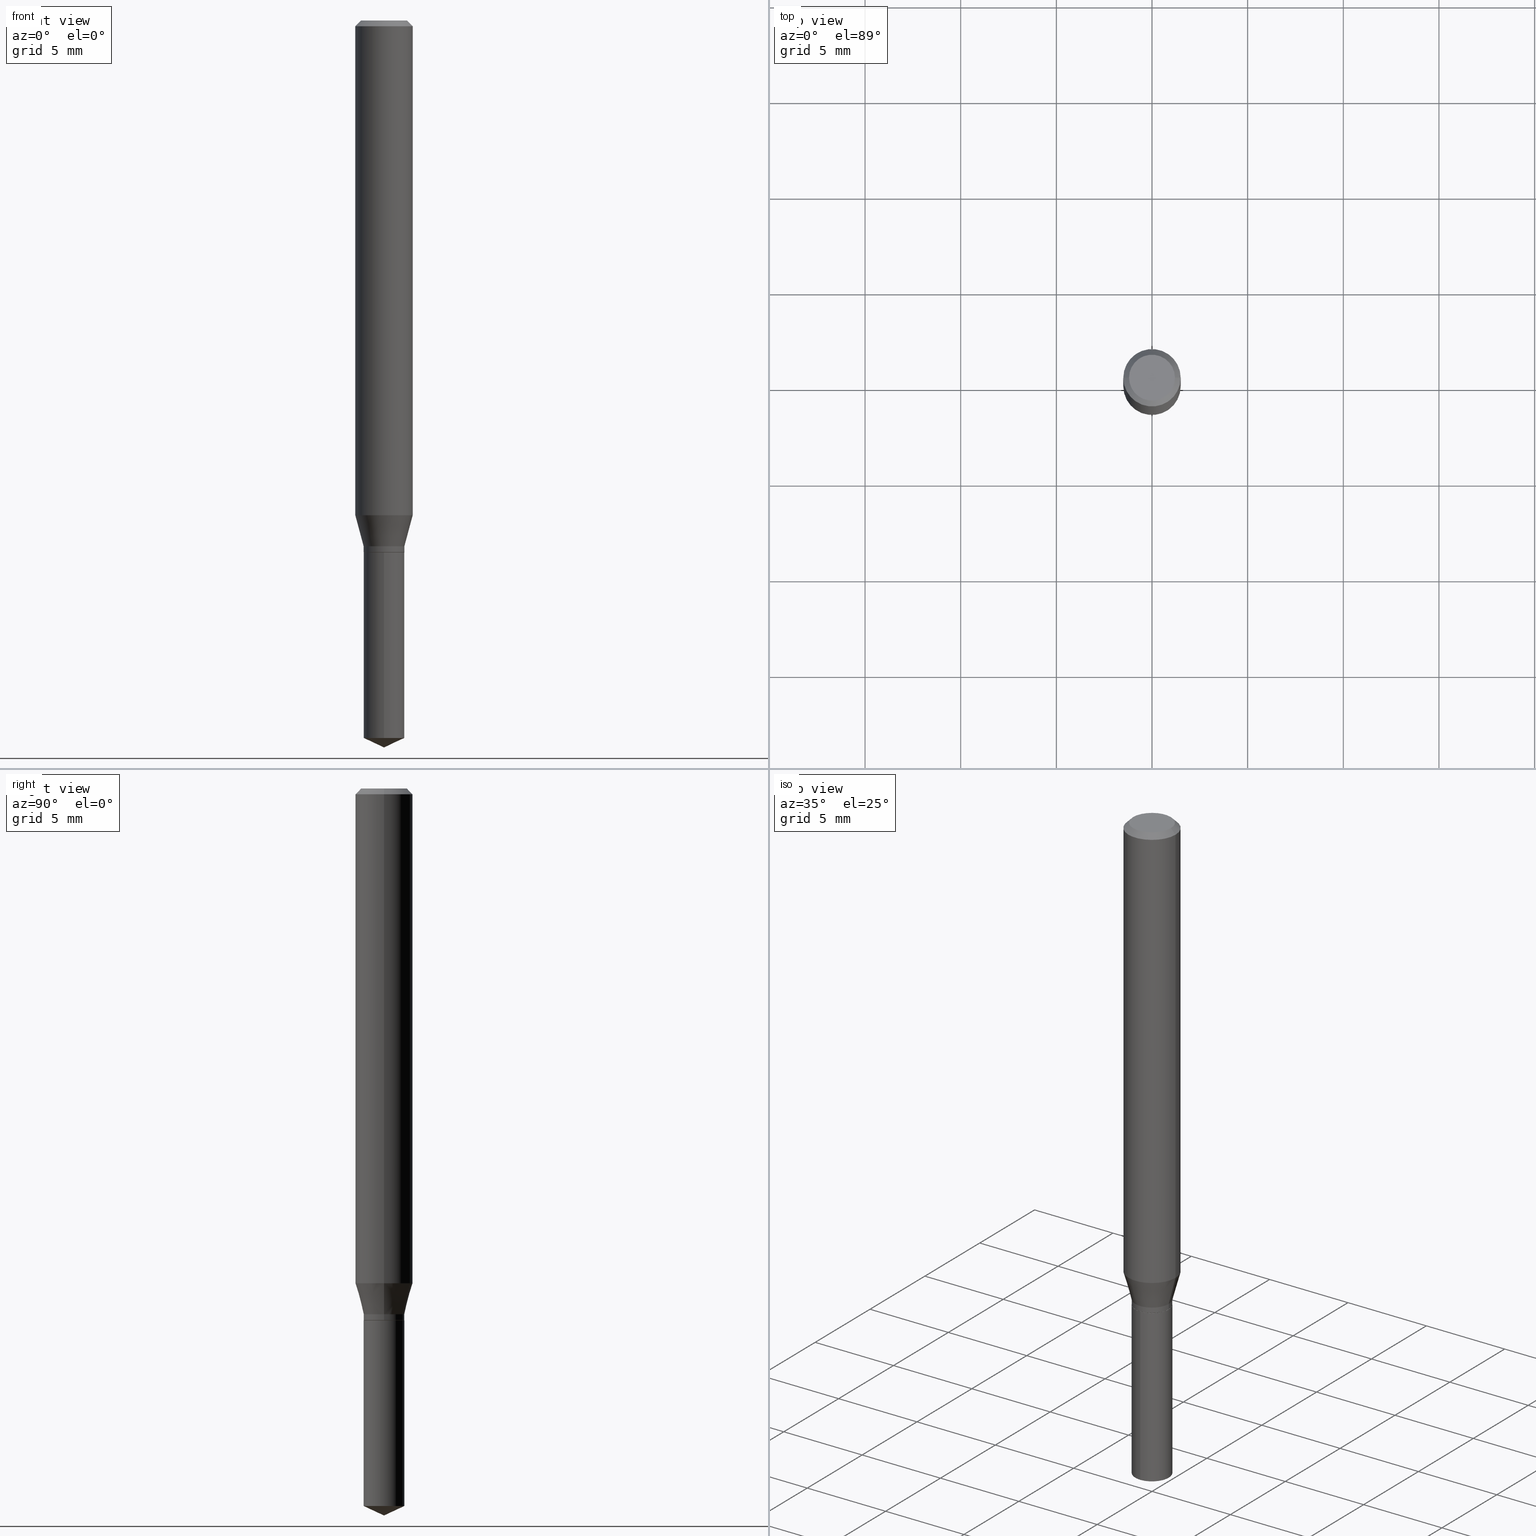
[diagram: canonical four-view strip — front | top / right | iso, engineering-drawing reading convention]
A machine part, canonical four-view strip (front | top / right | iso — engineering-drawing reading convention). The complete STEP part file that produces these views, byte-faithful:
ISO-10303-21;
HEADER;
FILE_DESCRIPTION (( 'STEP AP203' ),
    '1' );
FILE_NAME ('07616.STEP',
    '2024-04-23T23:49:26',
    ( '' ),
    ( '' ),
    'SwSTEP 2.0',
    'SolidWorks 2023',
    '' );
FILE_SCHEMA (( 'CONFIG_CONTROL_DESIGN' ));
ENDSEC;

DATA;
#1 = VERTEX_POINT ( 'NONE', #172 ) ;
#2 = DIRECTION ( 'NONE',  ( 0.000000000000000000, 0.000000000000000000, 1.000000000000000000 ) ) ;
#3 = EDGE_CURVE ( 'NONE', #328, #283, #195, .T. ) ;
#4 = ORIENTED_EDGE ( 'NONE', *, *, #82, .F. ) ;
#5 = AXIS2_PLACEMENT_3D ( 'NONE', #260, #487, #415 ) ;
#6 = EDGE_LOOP ( 'NONE', ( #462, #480, #401, #100 ) ) ;
#7 = DIRECTION ( 'NONE',  ( -2.445468806185136597E-29, 3.491481338843145583E-15, 1.000000000000000000 ) ) ;
#8 = CC_DESIGN_PERSON_AND_ORGANIZATION_ASSIGNMENT ( #355, #439, ( #84 ) ) ;
#9 = CALENDAR_DATE ( 2024, 23, 4 ) ;
#10 = CARTESIAN_POINT ( 'NONE',  ( -2.929352843289121272E-16, -0.04195000000000383145, -1.094499999999999806 ) ) ;
#11 = CARTESIAN_POINT ( 'NONE',  ( -2.929352843289027595E-16, -0.04195000000000514984, -1.476538393740397526 ) ) ;
#12 = FACE_OUTER_BOUND ( 'NONE', #148, .T. ) ;
#13 = AXIS2_PLACEMENT_3D ( 'NONE', #371, #144, #224 ) ;
#14 = EDGE_CURVE ( 'NONE', #305, #169, #474, .T. ) ;
#15 = CONICAL_SURFACE ( 'NONE', #164, 0.04145000000000000073, 0.7853981633972775267 ) ;
#16 = ORIENTED_EDGE ( 'NONE', *, *, #276, .T. ) ;
#17 = LINE ( 'NONE', #360, #476 ) ;
#18 = ADVANCED_FACE ( 'NONE', ( #182 ), #231, .F. ) ;
#19 = ORIENTED_EDGE ( 'NONE', *, *, #301, .T. ) ;
#20 = FACE_OUTER_BOUND ( 'NONE', #310, .T. ) ;
#21 = VERTEX_POINT ( 'NONE', #52 ) ;
#22 = FACE_OUTER_BOUND ( 'NONE', #121, .T. ) ;
#23 = DATE_AND_TIME ( #252, #124 ) ;
#24 = CIRCLE ( 'NONE', #226, 0.04195000000000000118 ) ;
#25 = ORIENTED_EDGE ( 'NONE', *, *, #42, .F. ) ;
#26 = DIRECTION ( 'NONE',  ( 1.000000000000000000, -6.982962677686266711E-15, 0.000000000000000000 ) ) ;
#27 = CC_DESIGN_PERSON_AND_ORGANIZATION_ASSIGNMENT ( #307, #159, ( #451 ) ) ;
#28 = CARTESIAN_POINT ( 'NONE',  ( 8.265746106709734507E-48, -1.180129479067563789E-33, -3.380025165646692144E-19 ) ) ;
#29 = CARTESIAN_POINT ( 'NONE',  ( 0.05905000000000013016, -3.966958010282648505E-15, -1.018081931190571998 ) ) ;
#30 = ADVANCED_FACE ( 'NONE', ( #197 ), #56, .T. ) ;
#31 = CARTESIAN_POINT ( 'NONE',  ( -9.261924752013118283E-28, 1.322368428517963298E-13, 37.87397874015748300 ) ) ;
#32 = AXIS2_PLACEMENT_3D ( 'NONE', #297, #221, #146 ) ;
#33 = DIRECTION ( 'NONE',  ( -2.445468806185136597E-29, 3.491481338843145583E-15, 1.000000000000000000 ) ) ;
#34 = DIRECTION ( 'NONE',  ( -6.982962677686266711E-15, -1.000000000000000000, 3.256076273735712870E-15 ) ) ;
#35 = ADVANCED_FACE ( 'NONE', ( #12 ), #186, .T. ) ;
#36 = CARTESIAN_POINT ( 'NONE',  ( 2.489687604867266189E-29, -3.554614064165273585E-15, -1.018081931190571998 ) ) ;
#37 = DIRECTION ( 'NONE',  ( -0.7071067811865454633, 2.468850131082235367E-15, -0.7071067811865495711 ) ) ;
#38 = VECTOR ( 'NONE', #242, 39.37007874015748143 ) ;
#39 = VECTOR ( 'NONE', #484, 39.37007874015748143 ) ;
#40 = CC_DESIGN_APPROVAL ( #340, ( #314 ) ) ;
#41 = ORIENTED_EDGE ( 'NONE', *, *, #393, .T. ) ;
#42 = EDGE_CURVE ( 'NONE', #199, #468, #354, .T. ) ;
#43 = DIRECTION ( 'NONE',  ( 0.7071067811865454633, -7.319954787623248157E-15, -0.7071067811865495711 ) ) ;
#44 = DIRECTION ( 'NONE',  ( 1.000000000000000000, -6.982962677686266711E-15, 0.000000000000000000 ) ) ;
#45 = AXIS2_PLACEMENT_3D ( 'NONE', #28, #320, #97 ) ;
#46 = AXIS2_PLACEMENT_3D ( 'NONE', #318, #469, #471 ) ;
#47 = ORGANIZATION ( 'UNSPECIFIED', 'UNSPECIFIED', '' ) ;
#48 = CIRCLE ( 'NONE', #175, 0.04195000000000000118 ) ;
#49 = CARTESIAN_POINT ( 'NONE',  ( 0.000000000000000000, 0.000000000000000000, 0.000000000000000000 ) ) ;
#50 = PERSON_AND_ORGANIZATION ( #223, #47 ) ;
#51 = ORIENTED_EDGE ( 'NONE', *, *, #455, .T. ) ;
#52 = CARTESIAN_POINT ( 'NONE',  ( -2.929352843289121272E-16, -0.04195000000000383145, -1.094499999999999806 ) ) ;
#53 = CC_DESIGN_PERSON_AND_ORGANIZATION_ASSIGNMENT ( #113, #419, ( #120 ) ) ;
#54 = SHAPE_DEFINITION_REPRESENTATION ( #369, #105 ) ;
#55 = ORIENTED_EDGE ( 'NONE', *, *, #57, .F. ) ;
#56 = CYLINDRICAL_SURFACE ( 'NONE', #237, 0.04195000000000000118 ) ;
#57 = EDGE_CURVE ( 'NONE', #436, #468, #48, .T. ) ;
#58 = VERTEX_POINT ( 'NONE', #163 ) ;
#59 = LINE ( 'NONE', #216, #442 ) ;
#60 = ORIENTED_EDGE ( 'NONE', *, *, #446, .T. ) ;
#61 = DIRECTION ( 'NONE',  ( -6.982962677686266711E-15, -1.000000000000000000, 3.256076273735712870E-15 ) ) ;
#62 = PERSON_AND_ORGANIZATION ( #223, #47 ) ;
#63 = CC_DESIGN_DATE_AND_TIME_ASSIGNMENT ( #243, #391, ( #314 ) ) ;
#64 = ORIENTED_EDGE ( 'NONE', *, *, #327, .F. ) ;
#65 = CARTESIAN_POINT ( 'NONE',  ( 4.132873053354867254E-48, -5.900647395337818946E-34, -1.690012582823346072E-19 ) ) ;
#66 = AXIS2_PLACEMENT_3D ( 'NONE', #106, #335, #72 ) ;
#67 = EDGE_LOOP ( 'NONE', ( #403, #349, #253, #88 ) ) ;
#68 = LINE ( 'NONE', #179, #425 ) ;
#69 = DIRECTION ( 'NONE',  ( -2.445468806185136597E-29, 3.491481338843145583E-15, 1.000000000000000000 ) ) ;
#70 = CARTESIAN_POINT ( 'NONE',  ( 0.04195000000000000118, -4.070368944823337860E-15, -1.081900000000000084 ) ) ;
#71 = CIRCLE ( 'NONE', #32, 0.04195000000000000118 ) ;
#72 = DIRECTION ( 'NONE',  ( -6.982962677686267499E-15, -1.000000000000000000, 3.520397390770440854E-15 ) ) ;
#73 = CARTESIAN_POINT ( 'NONE',  ( -0.05905000000000006771, 4.195754854663396409E-16, -2.904631170795525045E-30 ) ) ;
#74 = FACE_OUTER_BOUND ( 'NONE', #125, .T. ) ;
#75 = CARTESIAN_POINT ( 'NONE',  ( 0.04724000000000000421, -3.852183633974369838E-16, -3.380025165621689721E-19 ) ) ;
#76 = AXIS2_PLACEMENT_3D ( 'NONE', #450, #111, #187 ) ;
#77 = ORIENTED_EDGE ( 'NONE', *, *, #276, .F. ) ;
#78 = LINE ( 'NONE', #86, #384 ) ;
#79 = DIRECTION ( 'NONE',  ( 2.445468806185136597E-29, -3.491481338843145583E-15, -1.000000000000000000 ) ) ;
#80 = COORDINATED_UNIVERSAL_TIME_OFFSET ( 5, 0, .BEHIND. ) ;
#81 = CARTESIAN_POINT ( 'NONE',  ( 0.04195000000000000118, -2.929352843289388992E-16, 2.045556157446395029E-30 ) ) ;
#82 = EDGE_CURVE ( 'NONE', #468, #21, #245, .T. ) ;
#83 = VECTOR ( 'NONE', #215, 39.37007874015748143 ) ;
#84 = PRODUCT_DEFINITION_FORMATION_WITH_SPECIFIED_SOURCE ( 'ANY', '', #120, .NOT_KNOWN. ) ;
#85 = CLOSED_SHELL ( 'NONE', ( #30, #312, #336, #241, #153 ) ) ;
#86 = CARTESIAN_POINT ( 'NONE',  ( 0.04145000000000000073, -4.110870128353919109E-15, -1.094500000000000028 ) ) ;
#87 = EDGE_CURVE ( 'NONE', #285, #305, #234, .T. ) ;
#88 = ORIENTED_EDGE ( 'NONE', *, *, #174, .F. ) ;
#89 = ORIENTED_EDGE ( 'NONE', *, *, #82, .T. ) ;
#90 = CARTESIAN_POINT ( 'NONE',  ( 2.675342873966538993E-29, -3.819680584694400481E-15, -1.093999999999999861 ) ) ;
#91 = ORIENTED_EDGE ( 'NONE', *, *, #161, .T. ) ;
#92 = DIRECTION ( 'NONE',  ( -2.445458899330790108E-29, 3.491495526022433205E-15, 1.000000000000000000 ) ) ;
#93 = EDGE_CURVE ( 'NONE', #367, #244, #321, .T. ) ;
#94 = CIRCLE ( 'NONE', #432, 0.04195000000000000118 ) ;
#95 = EDGE_LOOP ( 'NONE', ( #357, #64 ) ) ;
#96 = FACE_OUTER_BOUND ( 'NONE', #279, .T. ) ;
#97 = DIRECTION ( 'NONE',  ( 1.000000000000000000, -6.982962677686266711E-15, 4.876185090822587894E-29 ) ) ;
#98 = DIRECTION ( 'NONE',  ( 1.000000000000000000, -6.982962677686265133E-15, 0.000000000000000000 ) ) ;
#99 = APPROVAL_STATUS ( 'not_yet_approved' ) ;
#100 = ORIENTED_EDGE ( 'NONE', *, *, #14, .F. ) ;
#101 = DIRECTION ( 'NONE',  ( 2.445458899330789267E-29, -3.491495526022433599E-15, -1.000000000000000000 ) ) ;
#102 = AXIS2_PLACEMENT_3D ( 'NONE', #303, #149, #44 ) ;
#103 = DIRECTION ( 'NONE',  ( -2.445468806185136877E-29, 3.491481338843145188E-15, 1.000000000000000000 ) ) ;
#104 = DIRECTION ( 'NONE',  ( -2.445458899330790108E-29, 3.491495526022433205E-15, 1.000000000000000000 ) ) ;
#105 = ADVANCED_BREP_SHAPE_REPRESENTATION ( '07616', ( #171, #334, #280 ), #488 ) ;
#106 = CARTESIAN_POINT ( 'NONE',  ( -9.261924752013118283E-28, 1.322368428517963298E-13, 37.87397874015748300 ) ) ;
#107 = CIRCLE ( 'NONE', #46, 0.04195000000000000118 ) ;
#108 = AXIS2_PLACEMENT_3D ( 'NONE', #294, #104, #112 ) ;
#109 = DIRECTION ( 'NONE',  ( 2.445468806185136597E-29, -3.491481338843145583E-15, -1.000000000000000000 ) ) ;
#110 = AXIS2_PLACEMENT_3D ( 'NONE', #410, #453, #311 ) ;
#111 = DIRECTION ( 'NONE',  ( -2.445468806185136597E-29, 3.491481338843145583E-15, 1.000000000000000000 ) ) ;
#112 = DIRECTION ( 'NONE',  ( -6.982962677686266711E-15, -1.000000000000000000, 6.512152547471425740E-15 ) ) ;
#113 = PERSON_AND_ORGANIZATION ( #223, #47 ) ;
#114 = CIRCLE ( 'NONE', #108, 0.04195000000000000118 ) ;
#115 = APPLICATION_PROTOCOL_DEFINITION ( 'international standard', 'config_control_design', 1994, #140 ) ;
#116 = EDGE_CURVE ( 'NONE', #285, #346, #378, .T. ) ;
#117 = CALENDAR_DATE ( 2024, 23, 4 ) ;
#118 = ORIENTED_EDGE ( 'NONE', *, *, #126, .F. ) ;
#119 = ADVANCED_FACE ( 'NONE', ( #270 ), #281, .T. ) ;
#120 = PRODUCT ( '07616', '07616', '', ( #268 ) ) ;
#121 = EDGE_LOOP ( 'NONE', ( #118, #19, #282, #392 ) ) ;
#122 = VECTOR ( 'NONE', #363, 39.37007874015747433 ) ;
#123 = CONICAL_SURFACE ( 'NONE', #66, 84.42940631927464779, 1.134464013796317339 ) ;
#124 = LOCAL_TIME ( 19, 49, 26.00000000000000000, #319 ) ;
#125 = EDGE_LOOP ( 'NONE', ( #132, #250, #470, #433 ) ) ;
#126 = EDGE_CURVE ( 'NONE', #1, #206, #59, .T. ) ;
#127 = CARTESIAN_POINT ( 'NONE',  ( 3.658651059288794515E-29, -5.223626456482161457E-15, -1.496099999999999985 ) ) ;
#128 = ORIENTED_EDGE ( 'NONE', *, *, #467, .F. ) ;
#129 = LINE ( 'NONE', #286, #83 ) ;
#130 = CONICAL_SURFACE ( 'NONE', #412, 0.05905000000000000526, 0.7853981633974453924 ) ;
#131 = APPROVAL_ROLE ( '' ) ;
#132 = ORIENTED_EDGE ( 'NONE', *, *, #380, .F. ) ;
#133 = DIRECTION ( 'NONE',  ( 1.000000000000000000, -6.982962677686266711E-15, 4.876176775795935793E-29 ) ) ;
#134 = ORIENTED_EDGE ( 'NONE', *, *, #482, .F. ) ;
#135 = DIRECTION ( 'NONE',  ( -2.445468806185136597E-29, 3.491481338843145583E-15, 1.000000000000000000 ) ) ;
#136 = CYLINDRICAL_SURFACE ( 'NONE', #356, 0.04195000000000000118 ) ;
#137 = VECTOR ( 'NONE', #263, 39.37007874015748143 ) ;
#138 = LINE ( 'NONE', #73, #39 ) ;
#139 = EDGE_CURVE ( 'NONE', #199, #436, #17, .T. ) ;
#140 = APPLICATION_CONTEXT ( 'configuration controlled 3d designs of mechanical parts and assemblies' ) ;
#141 = LINE ( 'NONE', #265, #137 ) ;
#142 = CYLINDRICAL_SURFACE ( 'NONE', #13, 0.04195000000000000118 ) ;
#143 = AXIS2_PLACEMENT_3D ( 'NONE', #430, #92, #61 ) ;
#144 = DIRECTION ( 'NONE',  ( -2.445468806185136597E-29, 3.491481338843145583E-15, 1.000000000000000000 ) ) ;
#145 = AXIS2_PLACEMENT_3D ( 'NONE', #292, #101, #170 ) ;
#146 = DIRECTION ( 'NONE',  ( 1.000000000000000000, -6.982962677686266711E-15, 0.000000000000000000 ) ) ;
#147 = LINE ( 'NONE', #233, #323 ) ;
#148 = EDGE_LOOP ( 'NONE', ( #128, #229, #60, #51 ) ) ;
#149 = DIRECTION ( 'NONE',  ( -2.445468806185136597E-29, 3.491481338843145583E-15, 1.000000000000000000 ) ) ;
#150 = DIRECTION ( 'NONE',  ( 1.000000000000000000, 0.000000000000000000, 0.000000000000000000 ) ) ;
#151 = AXIS2_PLACEMENT_3D ( 'NONE', #65, #211, #177 ) ;
#152 = VERTEX_POINT ( 'NONE', #247 ) ;
#153 = ADVANCED_FACE ( 'NONE', ( #20 ), #405, .F. ) ;
#154 = CARTESIAN_POINT ( 'NONE',  ( 2.676565608369632355E-29, -3.821426325363822773E-15, -1.094500000000000028 ) ) ;
#155 = LOCAL_TIME ( 19, 49, 26.00000000000000000, #202 ) ;
#156 = AXIS2_PLACEMENT_3D ( 'NONE', #154, #7, #441 ) ;
#157 = ORIENTED_EDGE ( 'NONE', *, *, #408, .F. ) ;
#158 = DIRECTION ( 'NONE',  ( -1.000000000000000000, 6.982962677686265922E-15, 0.000000000000000000 ) ) ;
#159 = PERSON_AND_ORGANIZATION_ROLE ( 'creator' ) ;
#160 = ORIENTED_EDGE ( 'NONE', *, *, #404, .F. ) ;
#161 = EDGE_CURVE ( 'NONE', #346, #1, #68, .T. ) ;
#162 = DIRECTION ( 'NONE',  ( 0.7071067811864267805, -2.468850131080992517E-15, 0.7071067811866682540 ) ) ;
#163 = CARTESIAN_POINT ( 'NONE',  ( 2.980726776513980774E-16, 0.04194999999999617091, -1.094500000000000028 ) ) ;
#164 = AXIS2_PLACEMENT_3D ( 'NONE', #329, #289, #26 ) ;
#165 = ADVANCED_FACE ( 'NONE', ( #22 ), #383, .T. ) ;
#166 = EDGE_LOOP ( 'NONE', ( #389, #189, #315, #4 ) ) ;
#167 = FACE_OUTER_BOUND ( 'NONE', #428, .T. ) ;
#168 = CC_DESIGN_PERSON_AND_ORGANIZATION_ASSIGNMENT ( #198, #352, ( #84 ) ) ;
#169 = VERTEX_POINT ( 'NONE', #29 ) ;
#170 = DIRECTION ( 'NONE',  ( 6.982962677686265922E-15, 1.000000000000000000, -3.491495526022433599E-15 ) ) ;
#171 = MANIFOLD_SOLID_BREP ( 'Body-Move/Copy2[1]', #85 ) ;
#172 = CARTESIAN_POINT ( 'NONE',  ( -0.04195000000000000118, -3.500484444943037956E-15, -1.081900000000000084 ) ) ;
#173 = DIRECTION ( 'NONE',  ( -2.445458899330790108E-29, 3.491495526022433205E-15, 1.000000000000000000 ) ) ;
#174 = EDGE_CURVE ( 'NONE', #346, #285, #107, .T. ) ;
#175 = AXIS2_PLACEMENT_3D ( 'NONE', #390, #343, #463 ) ;
#176 = ORIENTED_EDGE ( 'NONE', *, *, #421, .F. ) ;
#177 = DIRECTION ( 'NONE',  ( -1.000000000000000000, 6.982962677686265922E-15, -4.876176775795935793E-29 ) ) ;
#178 = EDGE_LOOP ( 'NONE', ( #429, #91, #176, #353 ) ) ;
#179 = CARTESIAN_POINT ( 'NONE',  ( -0.04195000000000000118, 2.980726776513620363E-16, -2.063493270361933110E-30 ) ) ;
#180 = DIRECTION ( 'NONE',  ( -1.000000000000000000, 6.982962677686265922E-15, 0.000000000000000000 ) ) ;
#181 = APPROVAL_PERSON_ORGANIZATION ( #208, #340, #131 ) ;
#182 = FACE_OUTER_BOUND ( 'NONE', #95, .T. ) ;
#183 = CARTESIAN_POINT ( 'NONE',  ( -0.04724000000000000421, 3.504923541997677355E-16, -3.380025165670481712E-19 ) ) ;
#184 = DIRECTION ( 'NONE',  ( 1.000000000000000000, -6.982962677686266711E-15, 0.000000000000000000 ) ) ;
#185 = CARTESIAN_POINT ( 'NONE',  ( -0.04195000000000000118, -3.500484444943037956E-15, -1.093999999999999861 ) ) ;
#186 = CONICAL_SURFACE ( 'NONE', #366, 0.05905000000000000526, 0.7853981633974453924 ) ;
#187 = DIRECTION ( 'NONE',  ( 1.000000000000000000, -6.982962677686266711E-15, 4.876185090822587894E-29 ) ) ;
#188 = LOCAL_TIME ( 19, 49, 26.00000000000000000, #461 ) ;
#189 = ORIENTED_EDGE ( 'NONE', *, *, #404, .T. ) ;
#190 = EDGE_CURVE ( 'NONE', #244, #346, #129, .T. ) ;
#191 = FACE_OUTER_BOUND ( 'NONE', #399, .T. ) ;
#192 = CARTESIAN_POINT ( 'NONE',  ( 2.888098660104664642E-31, -4.123439461173780879E-17, -0.01181000000000007565 ) ) ;
#193 =( NAMED_UNIT ( * ) PLANE_ANGLE_UNIT ( ) SI_UNIT ( $, .RADIAN. ) );
#194 = DIRECTION ( 'NONE',  ( -2.445458899330790108E-29, 3.491495526022433599E-15, 1.000000000000000000 ) ) ;
#195 = CIRCLE ( 'NONE', #45, 0.04724000000000000421 ) ;
#196 = CARTESIAN_POINT ( 'NONE',  ( 0.000000000000000000, 0.000000000000000000, 0.000000000000000000 ) ) ;
#197 = FACE_OUTER_BOUND ( 'NONE', #166, .T. ) ;
#198 = PERSON_AND_ORGANIZATION ( #223, #47 ) ;
#199 = VERTEX_POINT ( 'NONE', #127 ) ;
#200 = ORIENTED_EDGE ( 'NONE', *, *, #301, .F. ) ;
#201 = APPROVAL_PERSON_ORGANIZATION ( #50, #330, #459 ) ;
#202 = COORDINATED_UNIVERSAL_TIME_OFFSET ( 5, 0, .BEHIND. ) ;
#203 = EDGE_LOOP ( 'NONE', ( #25, #317, #269 ) ) ;
#204 = DIRECTION ( 'NONE',  ( -0.2588190451025213501, 5.211531920934551042E-15, 0.9659258262890682012 ) ) ;
#205 = ADVANCED_FACE ( 'NONE', ( #316 ), #15, .T. ) ;
#206 = VERTEX_POINT ( 'NONE', #481 ) ;
#207 = CYLINDRICAL_SURFACE ( 'NONE', #227, 0.04195000000000000118 ) ;
#208 = PERSON_AND_ORGANIZATION ( #223, #47 ) ;
#209 = CARTESIAN_POINT ( 'NONE',  ( 0.04195000000000000118, -4.070368944823337860E-15, -1.081900000000000084 ) ) ;
#210 = ADVANCED_FACE ( 'NONE', ( #167 ), #136, .T. ) ;
#211 = DIRECTION ( 'NONE',  ( 2.438088387897960049E-29, -3.491481338843145188E-15, -1.000000000000000000 ) ) ;
#212 = CIRCLE ( 'NONE', #278, 0.05905000000000013016 ) ;
#213 = CC_DESIGN_APPROVAL ( #330, ( #451 ) ) ;
#214 = ORIENTED_EDGE ( 'NONE', *, *, #42, .T. ) ;
#215 = DIRECTION ( 'NONE',  ( -0.7071067811864267805, 7.493145998869918709E-15, 0.7071067811866682540 ) ) ;
#216 = CARTESIAN_POINT ( 'NONE',  ( -0.04195000000000000118, -3.479360982843036974E-15, -1.081900000000000084 ) ) ;
#217 = ADVANCED_FACE ( 'NONE', ( #257 ), #444, .T. ) ;
#218 = CARTESIAN_POINT ( 'NONE',  ( 0.04145000000000000073, -4.110870128353919109E-15, -1.094500000000000028 ) ) ;
#219 = CONICAL_SURFACE ( 'NONE', #418, 84.42940631927464779, 1.134464013796317339 ) ;
#220 = APPROVAL_PERSON_ORGANIZATION ( #422, #388, #385 ) ;
#221 = DIRECTION ( 'NONE',  ( -2.445468806185136597E-29, 3.491481338843145583E-15, 1.000000000000000000 ) ) ;
#222 = CARTESIAN_POINT ( 'NONE',  ( 2.888098660104664642E-31, -4.123439461173780879E-17, -0.01181000000000007565 ) ) ;
#223 = PERSON ( 'UNSPECIFIED', 'UNSPECIFIED', 'UNSPECIFIED', ('UNSPECIFIED'), ('UNSPECIFIED'), ('UNSPECIFIED') ) ;
#224 = DIRECTION ( 'NONE',  ( 1.000000000000000000, -6.982962677686266711E-15, 4.876176775795935793E-29 ) ) ;
#225 = ADVANCED_FACE ( 'NONE', ( #96 ), #251, .T. ) ;
#226 = AXIS2_PLACEMENT_3D ( 'NONE', #370, #374, #34 ) ;
#227 = AXIS2_PLACEMENT_3D ( 'NONE', #362, #173, #322 ) ;
#228 = CYLINDRICAL_SURFACE ( 'NONE', #236, 0.05905000000000006771 ) ;
#229 = ORIENTED_EDGE ( 'NONE', *, *, #3, .F. ) ;
#230 = EDGE_CURVE ( 'NONE', #21, #58, #365, .T. ) ;
#231 = PLANE ( 'NONE',  #110 ) ;
#232 =( CONVERSION_BASED_UNIT ( 'INCH', #465 ) LENGTH_UNIT ( ) NAMED_UNIT ( #485 ) );
#233 = CARTESIAN_POINT ( 'NONE',  ( 0.05905000000000000526, -4.463468013801467941E-16, -0.01181000000000007565 ) ) ;
#234 = LINE ( 'NONE', #81, #449 ) ;
#235 = APPROVAL_STATUS ( 'not_yet_approved' ) ;
#236 = AXIS2_PLACEMENT_3D ( 'NONE', #196, #424, #341 ) ;
#237 = AXIS2_PLACEMENT_3D ( 'NONE', #306, #358, #466 ) ;
#238 = UNCERTAINTY_MEASURE_WITH_UNIT (LENGTH_MEASURE( 1.000000000000000082E-05 ), #232, 'distance_accuracy_value', 'NONE');
#239 = APPROVAL_DATE_TIME ( #381, #330 ) ;
#240 = ORIENTED_EDGE ( 'NONE', *, *, #351, .F. ) ;
#241 = ADVANCED_FACE ( 'NONE', ( #396 ), #207, .T. ) ;
#242 = DIRECTION ( 'NONE',  ( -6.328713451373378845E-15, -0.9063077870366498257, 0.4226182617406997188 ) ) ;
#243 = DATE_AND_TIME ( #431, #155 ) ;
#244 = VERTEX_POINT ( 'NONE', #475 ) ;
#245 = LINE ( 'NONE', #10, #277 ) ;
#246 = ORIENTED_EDGE ( 'NONE', *, *, #93, .T. ) ;
#247 = CARTESIAN_POINT ( 'NONE',  ( 0.05905000000000000526, -4.535783407291119586E-16, -0.01181000000000007565 ) ) ;
#248 = CIRCLE ( 'NONE', #406, 0.04145000000000000073 ) ;
#249 = LOCAL_TIME ( 19, 49, 26.00000000000000000, #348 ) ;
#250 = ORIENTED_EDGE ( 'NONE', *, *, #467, .T. ) ;
#251 = CYLINDRICAL_SURFACE ( 'NONE', #298, 0.05905000000000006771 ) ;
#252 = CALENDAR_DATE ( 2024, 23, 4 ) ;
#253 = ORIENTED_EDGE ( 'NONE', *, *, #482, .T. ) ;
#254 = FACE_OUTER_BOUND ( 'NONE', #478, .T. ) ;
#255 = ORIENTED_EDGE ( 'NONE', *, *, #190, .T. ) ;
#256 = DIRECTION ( 'NONE',  ( -2.445468806185136597E-29, 3.491481338843145583E-15, 1.000000000000000000 ) ) ;
#257 = FACE_OUTER_BOUND ( 'NONE', #6, .T. ) ;
#258 = EDGE_CURVE ( 'NONE', #206, #169, #212, .T. ) ;
#259 = CARTESIAN_POINT ( 'NONE',  ( 2.645752701411699139E-29, -3.777433660494399306E-15, -1.081900000000000084 ) ) ;
#260 = CARTESIAN_POINT ( 'NONE',  ( 2.888098660104664642E-31, -4.123439461173780879E-17, -0.01181000000000007565 ) ) ;
#261 = CLOSED_SHELL ( 'NONE', ( #205, #438, #489, #217, #377, #210, #165, #225, #35, #264, #18, #119 ) ) ;
#262 = AXIS2_PLACEMENT_3D ( 'NONE', #222, #375, #300 ) ;
#263 = DIRECTION ( 'NONE',  ( -2.445458899330790108E-29, 3.491495526022433599E-15, 1.000000000000000000 ) ) ;
#264 = ADVANCED_FACE ( 'NONE', ( #254 ), #402, .F. ) ;
#265 = CARTESIAN_POINT ( 'NONE',  ( 2.980726776513887590E-16, 0.04194999999999617785, -1.094500000000000028 ) ) ;
#266 = DIRECTION ( 'NONE',  ( -6.982962677686267499E-15, -1.000000000000000000, 3.520397390770440854E-15 ) ) ;
#267 = VECTOR ( 'NONE', #299, 39.37007874015748143 ) ;
#268 = MECHANICAL_CONTEXT ( 'NONE', #386, 'mechanical' ) ;
#269 = ORIENTED_EDGE ( 'NONE', *, *, #296, .F. ) ;
#270 = FACE_OUTER_BOUND ( 'NONE', #67, .T. ) ;
#271 = CALENDAR_DATE ( 2024, 23, 4 ) ;
#272 = ORIENTED_EDGE ( 'NONE', *, *, #174, .T. ) ;
#273 = CARTESIAN_POINT ( 'NONE',  ( 3.658651059288795076E-29, -5.223626456482161457E-15, -1.496099999999999985 ) ) ;
#274 = DATE_TIME_ROLE ( 'creation_date' ) ;
#275 = ORIENTED_EDGE ( 'NONE', *, *, #161, .F. ) ;
#276 = EDGE_CURVE ( 'NONE', #58, #21, #24, .T. ) ;
#277 = VECTOR ( 'NONE', #194, 39.37007874015748143 ) ;
#278 = AXIS2_PLACEMENT_3D ( 'NONE', #364, #437, #98 ) ;
#279 = EDGE_LOOP ( 'NONE', ( #240, #288, #325, #460 ) ) ;
#280 = AXIS2_PLACEMENT_3D ( 'NONE', #49, #2, #150 ) ;
#281 = CONICAL_SURFACE ( 'NONE', #156, 0.04145000000000000073, 0.7853981633972775267 ) ;
#282 = ORIENTED_EDGE ( 'NONE', *, *, #14, .T. ) ;
#283 = VERTEX_POINT ( 'NONE', #75 ) ;
#284 = DIRECTION ( 'NONE',  ( 1.000000000000000000, -6.982962677686266711E-15, 4.876176775795936353E-29 ) ) ;
#285 = VERTEX_POINT ( 'NONE', #445 ) ;
#286 = CARTESIAN_POINT ( 'NONE',  ( -0.04145000000000000073, -3.526906361391261734E-15, -1.094500000000000028 ) ) ;
#287 = AXIS2_PLACEMENT_3D ( 'NONE', #407, #135, #434 ) ;
#288 = ORIENTED_EDGE ( 'NONE', *, *, #258, .T. ) ;
#289 = DIRECTION ( 'NONE',  ( -2.445468806185136597E-29, 3.491481338843145583E-15, 1.000000000000000000 ) ) ;
#290 = ORIENTED_EDGE ( 'NONE', *, *, #380, .T. ) ;
#291 = CARTESIAN_POINT ( 'NONE',  ( 2.645752701411699139E-29, -3.777433660494399306E-15, -1.081900000000000084 ) ) ;
#292 = CARTESIAN_POINT ( 'NONE',  ( 2.676565608369631794E-29, -3.821426325363822773E-15, -1.094499999999999806 ) ) ;
#293 = CIRCLE ( 'NONE', #76, 0.04724000000000000421 ) ;
#294 = CARTESIAN_POINT ( 'NONE',  ( 3.610824798228128264E-29, -5.155311667877218930E-15, -1.476538393740397970 ) ) ;
#295 = CARTESIAN_POINT ( 'NONE',  ( 0.05905000000000006771, -4.123439461173745257E-16, 2.879382386107503723E-30 ) ) ;
#296 = EDGE_CURVE ( 'NONE', #468, #436, #114, .T. ) ;
#297 = CARTESIAN_POINT ( 'NONE',  ( 2.645752701411699139E-29, -3.777433660494399306E-15, -1.081900000000000084 ) ) ;
#298 = AXIS2_PLACEMENT_3D ( 'NONE', #326, #69, #284 ) ;
#299 = DIRECTION ( 'NONE',  ( -2.445468806185136877E-29, 3.491481338843145188E-15, 1.000000000000000000 ) ) ;
#300 = DIRECTION ( 'NONE',  ( 1.000000000000000000, -6.982962677686268288E-15, 0.000000000000000000 ) ) ;
#301 = EDGE_CURVE ( 'NONE', #1, #305, #94, .T. ) ;
#302 = ORIENTED_EDGE ( 'NONE', *, *, #230, .T. ) ;
#303 = CARTESIAN_POINT ( 'NONE',  ( 2.676565608369632355E-29, -3.821426325363822773E-15, -1.094500000000000028 ) ) ;
#304 = APPROVAL_STATUS ( 'not_yet_approved' ) ;
#305 = VERTEX_POINT ( 'NONE', #70 ) ;
#306 = CARTESIAN_POINT ( 'NONE',  ( 2.676565608369631794E-29, -3.821426325363822773E-15, -1.094499999999999806 ) ) ;
#307 = PERSON_AND_ORGANIZATION ( #223, #47 ) ;
#308 = ORIENTED_EDGE ( 'NONE', *, *, #57, .T. ) ;
#309 = DATE_AND_TIME ( #9, #249 ) ;
#310 = EDGE_LOOP ( 'NONE', ( #302, #16 ) ) ;
#311 = DIRECTION ( 'NONE',  ( 1.000000000000000000, -6.982962677686265922E-15, 4.876176775795935793E-29 ) ) ;
#312 = ADVANCED_FACE ( 'NONE', ( #483 ), #123, .T. ) ;
#313 =( LENGTH_UNIT ( ) NAMED_UNIT ( * ) SI_UNIT ( $, .METRE. ) );
#314 = SECURITY_CLASSIFICATION ( '', '', #472 ) ;
#315 = ORIENTED_EDGE ( 'NONE', *, *, #230, .F. ) ;
#316 = FACE_OUTER_BOUND ( 'NONE', #379, .T. ) ;
#317 = ORIENTED_EDGE ( 'NONE', *, *, #139, .T. ) ;
#318 = CARTESIAN_POINT ( 'NONE',  ( 2.675342873966538993E-29, -3.819680584694400481E-15, -1.093999999999999861 ) ) ;
#319 = COORDINATED_UNIVERSAL_TIME_OFFSET ( 5, 0, .BEHIND. ) ;
#320 = DIRECTION ( 'NONE',  ( -2.445468806185136597E-29, 3.491481338843145583E-15, 1.000000000000000000 ) ) ;
#321 = CIRCLE ( 'NONE', #102, 0.04145000000000000073 ) ;
#322 = DIRECTION ( 'NONE',  ( -6.982962677686266711E-15, -1.000000000000000000, 3.256076273735712870E-15 ) ) ;
#323 = VECTOR ( 'NONE', #43, 39.37007874015748143 ) ;
#324 = CC_DESIGN_PERSON_AND_ORGANIZATION_ASSIGNMENT ( #62, #398, ( #314 ) ) ;
#325 = ORIENTED_EDGE ( 'NONE', *, *, #408, .T. ) ;
#326 = CARTESIAN_POINT ( 'NONE',  ( 0.000000000000000000, 0.000000000000000000, 0.000000000000000000 ) ) ;
#327 = EDGE_CURVE ( 'NONE', #244, #367, #248, .T. ) ;
#328 = VERTEX_POINT ( 'NONE', #183 ) ;
#329 = CARTESIAN_POINT ( 'NONE',  ( 2.676565608369632355E-29, -3.821426325363822773E-15, -1.094500000000000028 ) ) ;
#330 = APPROVAL ( #304, 'UNSPECIFIED' ) ;
#331 = DIRECTION ( 'NONE',  ( -2.445468806185136597E-29, 3.491481338843145583E-15, 1.000000000000000000 ) ) ;
#332 = CIRCLE ( 'NONE', #372, 0.05905000000000013016 ) ;
#333 = DIRECTION ( 'NONE',  ( 1.000000000000000000, -6.982962677686265133E-15, 0.000000000000000000 ) ) ;
#334 = MANIFOLD_SOLID_BREP ( 'Body-Move/Copy2[2]', #261 ) ;
#335 = DIRECTION ( 'NONE',  ( -2.445458899330790108E-29, 3.491495526022433205E-15, 1.000000000000000000 ) ) ;
#336 = ADVANCED_FACE ( 'NONE', ( #337 ), #219, .T. ) ;
#337 = FACE_OUTER_BOUND ( 'NONE', #342, .T. ) ;
#338 = LOCAL_TIME ( 19, 49, 26.00000000000000000, #80 ) ;
#339 = DIRECTION ( 'NONE',  ( -2.445458899330790108E-29, 3.491495526022433205E-15, 1.000000000000000000 ) ) ;
#340 = APPROVAL ( #99, 'UNSPECIFIED' ) ;
#341 = DIRECTION ( 'NONE',  ( 1.000000000000000000, -6.982962677686266711E-15, 4.876176775795936353E-29 ) ) ;
#342 = EDGE_LOOP ( 'NONE', ( #361, #214, #55 ) ) ;
#343 = DIRECTION ( 'NONE',  ( -2.445458899330790108E-29, 3.491495526022433205E-15, 1.000000000000000000 ) ) ;
#344 = VECTOR ( 'NONE', #37, 39.37007874015748143 ) ;
#345 =( NAMED_UNIT ( * ) SI_UNIT ( $, .STERADIAN. ) SOLID_ANGLE_UNIT ( ) );
#346 = VERTEX_POINT ( 'NONE', #185 ) ;
#347 = DIRECTION ( 'NONE',  ( -2.445468806185136597E-29, 3.491481338843145583E-15, 1.000000000000000000 ) ) ;
#348 = COORDINATED_UNIVERSAL_TIME_OFFSET ( 5, 0, .BEHIND. ) ;
#349 = ORIENTED_EDGE ( 'NONE', *, *, #327, .T. ) ;
#350 = DESIGN_CONTEXT ( 'detailed design', #140, 'design' ) ;
#351 = EDGE_CURVE ( 'NONE', #206, #420, #138, .T. ) ;
#352 = PERSON_AND_ORGANIZATION_ROLE ( 'creator' ) ;
#353 = ORIENTED_EDGE ( 'NONE', *, *, #87, .F. ) ;
#354 = LINE ( 'NONE', #273, #38 ) ;
#355 = PERSON_AND_ORGANIZATION ( #223, #47 ) ;
#356 = AXIS2_PLACEMENT_3D ( 'NONE', #443, #256, #133 ) ;
#357 = ORIENTED_EDGE ( 'NONE', *, *, #93, .F. ) ;
#358 = DIRECTION ( 'NONE',  ( -2.445458899330790108E-29, 3.491495526022433205E-15, 1.000000000000000000 ) ) ;
#359 = ORIENTED_EDGE ( 'NONE', *, *, #416, .F. ) ;
#360 = CARTESIAN_POINT ( 'NONE',  ( 3.658672935554494692E-29, -5.223595400746700193E-15, -1.496099999999999985 ) ) ;
#361 = ORIENTED_EDGE ( 'NONE', *, *, #139, .F. ) ;
#362 = CARTESIAN_POINT ( 'NONE',  ( 2.676565608369631794E-29, -3.821426325363822773E-15, -1.094499999999999806 ) ) ;
#363 = DIRECTION ( 'NONE',  ( 0.2588190451025213501, 1.565188264969621968E-15, 0.9659258262890682012 ) ) ;
#364 = CARTESIAN_POINT ( 'NONE',  ( 2.489687604867266189E-29, -3.554614064165273585E-15, -1.018081931190571998 ) ) ;
#365 = CIRCLE ( 'NONE', #143, 0.04195000000000000118 ) ;
#366 = AXIS2_PLACEMENT_3D ( 'NONE', #192, #79, #158 ) ;
#367 = VERTEX_POINT ( 'NONE', #218 ) ;
#368 = DIRECTION ( 'NONE',  ( 1.000000000000000000, -6.982962677686266711E-15, 0.000000000000000000 ) ) ;
#369 = PRODUCT_DEFINITION_SHAPE ( 'NONE', 'NONE',  #451 ) ;
#370 = CARTESIAN_POINT ( 'NONE',  ( 2.676565608369631794E-29, -3.821426325363822773E-15, -1.094499999999999806 ) ) ;
#371 = CARTESIAN_POINT ( 'NONE',  ( 0.000000000000000000, 0.000000000000000000, 0.000000000000000000 ) ) ;
#372 = AXIS2_PLACEMENT_3D ( 'NONE', #36, #33, #333 ) ;
#373 = CC_DESIGN_APPROVAL ( #388, ( #84 ) ) ;
#374 = DIRECTION ( 'NONE',  ( -2.445458899330790108E-29, 3.491495526022433205E-15, 1.000000000000000000 ) ) ;
#375 = DIRECTION ( 'NONE',  ( -2.445468806185136597E-29, 3.491481338843145583E-15, 1.000000000000000000 ) ) ;
#376 = CARTESIAN_POINT ( 'NONE',  ( 2.888098660104664642E-31, -4.123439461173780879E-17, -0.01181000000000007565 ) ) ;
#377 = ADVANCED_FACE ( 'NONE', ( #486 ), #142, .T. ) ;
#378 = CIRCLE ( 'NONE', #435, 0.04195000000000000118 ) ;
#379 = EDGE_LOOP ( 'NONE', ( #246, #255, #417, #134 ) ) ;
#380 = EDGE_CURVE ( 'NONE', #283, #328, #293, .T. ) ;
#381 = DATE_AND_TIME ( #271, #338 ) ;
#382 = DIRECTION ( 'NONE',  ( -2.445468806185136877E-29, 3.491481338843145188E-15, 1.000000000000000000 ) ) ;
#383 = CONICAL_SURFACE ( 'NONE', #457, 0.04195000000000000118, 0.2617993877991500740 ) ;
#384 = VECTOR ( 'NONE', #162, 39.37007874015748143 ) ;
#385 = APPROVAL_ROLE ( '' ) ;
#386 = APPLICATION_CONTEXT ( 'configuration controlled 3d designs of mechanical parts and assemblies' ) ;
#387 = APPROVAL_DATE_TIME ( #309, #388 ) ;
#388 = APPROVAL ( #235, 'UNSPECIFIED' ) ;
#389 = ORIENTED_EDGE ( 'NONE', *, *, #296, .T. ) ;
#390 = CARTESIAN_POINT ( 'NONE',  ( 3.610824798228128264E-29, -5.155311667877218930E-15, -1.476538393740397970 ) ) ;
#391 = DATE_TIME_ROLE ( 'classification_date' ) ;
#392 = ORIENTED_EDGE ( 'NONE', *, *, #258, .F. ) ;
#393 = EDGE_CURVE ( 'NONE', #169, #206, #332, .T. ) ;
#394 = CIRCLE ( 'NONE', #5, 0.05905000000000000526 ) ;
#395 = ORIENTED_EDGE ( 'NONE', *, *, #3, .T. ) ;
#396 = FACE_OUTER_BOUND ( 'NONE', #454, .T. ) ;
#397 = PRODUCT_RELATED_PRODUCT_CATEGORY ( 'detail', '', ( #120 ) ) ;
#398 = PERSON_AND_ORGANIZATION_ROLE ( 'classification_officer' ) ;
#399 = EDGE_LOOP ( 'NONE', ( #41, #440, #359, #157 ) ) ;
#400 = DIRECTION ( 'NONE',  ( -2.445468806185136597E-29, 3.491481338843145583E-15, 1.000000000000000000 ) ) ;
#401 = ORIENTED_EDGE ( 'NONE', *, *, #393, .F. ) ;
#402 = PLANE ( 'NONE',  #151 ) ;
#403 = ORIENTED_EDGE ( 'NONE', *, *, #190, .F. ) ;
#404 = EDGE_CURVE ( 'NONE', #436, #58, #141, .T. ) ;
#405 = PLANE ( 'NONE',  #145 ) ;
#406 = AXIS2_PLACEMENT_3D ( 'NONE', #490, #452, #184 ) ;
#407 = CARTESIAN_POINT ( 'NONE',  ( 2.645752701411699139E-29, -3.777433660494399306E-15, -1.081900000000000084 ) ) ;
#408 = EDGE_CURVE ( 'NONE', #169, #152, #414, .T. ) ;
#409 = DIRECTION ( 'NONE',  ( 1.000000000000000000, -6.982962677686266711E-15, 0.000000000000000000 ) ) ;
#410 = CARTESIAN_POINT ( 'NONE',  ( 1.579755384345491432E-30, -7.428190654755302836E-15, -1.094500000000000028 ) ) ;
#411 = CARTESIAN_POINT ( 'NONE',  ( -0.05905000000000000526, 3.711095515056362547E-16, -0.01181000000000007565 ) ) ;
#412 = AXIS2_PLACEMENT_3D ( 'NONE', #376, #109, #180 ) ;
#413 = LINE ( 'NONE', #411, #344 ) ;
#414 = LINE ( 'NONE', #295, #267 ) ;
#415 = DIRECTION ( 'NONE',  ( 1.000000000000000000, -6.982962677686268288E-15, 0.000000000000000000 ) ) ;
#416 = EDGE_CURVE ( 'NONE', #152, #420, #394, .T. ) ;
#417 = ORIENTED_EDGE ( 'NONE', *, *, #116, .F. ) ;
#418 = AXIS2_PLACEMENT_3D ( 'NONE', #31, #339, #266 ) ;
#419 = PERSON_AND_ORGANIZATION_ROLE ( 'design_owner' ) ;
#420 = VERTEX_POINT ( 'NONE', #447 ) ;
#421 = EDGE_CURVE ( 'NONE', #305, #1, #71, .T. ) ;
#422 = PERSON_AND_ORGANIZATION ( #223, #47 ) ;
#423 = CC_DESIGN_DATE_AND_TIME_ASSIGNMENT ( #464, #274, ( #451 ) ) ;
#424 = DIRECTION ( 'NONE',  ( -2.445468806185136597E-29, 3.491481338843145583E-15, 1.000000000000000000 ) ) ;
#425 = VECTOR ( 'NONE', #103, 39.37007874015748143 ) ;
#426 = ORIENTED_EDGE ( 'NONE', *, *, #87, .T. ) ;
#427 = APPLICATION_PROTOCOL_DEFINITION ( 'international standard', 'config_control_design', 1994, #386 ) ;
#428 = EDGE_LOOP ( 'NONE', ( #275, #272, #426, #200 ) ) ;
#429 = ORIENTED_EDGE ( 'NONE', *, *, #116, .T. ) ;
#430 = CARTESIAN_POINT ( 'NONE',  ( 2.676565608369631794E-29, -3.821426325363822773E-15, -1.094499999999999806 ) ) ;
#431 = CALENDAR_DATE ( 2024, 23, 4 ) ;
#432 = AXIS2_PLACEMENT_3D ( 'NONE', #259, #331, #409 ) ;
#433 = ORIENTED_EDGE ( 'NONE', *, *, #446, .F. ) ;
#434 = DIRECTION ( 'NONE',  ( 1.000000000000000000, -6.982962677686266711E-15, 0.000000000000000000 ) ) ;
#435 = AXIS2_PLACEMENT_3D ( 'NONE', #90, #347, #456 ) ;
#436 = VERTEX_POINT ( 'NONE', #448 ) ;
#437 = DIRECTION ( 'NONE',  ( -2.445468806185136597E-29, 3.491481338843145583E-15, 1.000000000000000000 ) ) ;
#438 = ADVANCED_FACE ( 'NONE', ( #74 ), #130, .T. ) ;
#439 = PERSON_AND_ORGANIZATION_ROLE ( 'design_supplier' ) ;
#440 = ORIENTED_EDGE ( 'NONE', *, *, #351, .T. ) ;
#441 = DIRECTION ( 'NONE',  ( 1.000000000000000000, -6.982962677686266711E-15, 0.000000000000000000 ) ) ;
#442 = VECTOR ( 'NONE', #204, 39.37007874015747433 ) ;
#443 = CARTESIAN_POINT ( 'NONE',  ( 0.000000000000000000, 0.000000000000000000, 0.000000000000000000 ) ) ;
#444 = CONICAL_SURFACE ( 'NONE', #287, 0.04195000000000000118, 0.2617993877991500740 ) ;
#445 = CARTESIAN_POINT ( 'NONE',  ( 0.04195000000000000118, -4.112615869023339824E-15, -1.093999999999999861 ) ) ;
#446 = EDGE_CURVE ( 'NONE', #328, #420, #413, .T. ) ;
#447 = CARTESIAN_POINT ( 'NONE',  ( -0.05905000000000000526, -1.378348743922165375E-15, -0.01181000000000007565 ) ) ;
#448 = CARTESIAN_POINT ( 'NONE',  ( 2.980726776513980281E-16, 0.04194999999999483864, -1.476538393740398192 ) ) ;
#449 = VECTOR ( 'NONE', #382, 39.37007874015748143 ) ;
#450 = CARTESIAN_POINT ( 'NONE',  ( 8.265746106709734507E-48, -1.180129479067563789E-33, -3.380025165646692144E-19 ) ) ;
#451 = PRODUCT_DEFINITION ( 'UNKNOWN', '', #84, #350 ) ;
#452 = DIRECTION ( 'NONE',  ( -2.445468806185136597E-29, 3.491481338843145583E-15, 1.000000000000000000 ) ) ;
#453 = DIRECTION ( 'NONE',  ( -2.438088387897960049E-29, 3.491481338843145188E-15, 1.000000000000000000 ) ) ;
#454 = EDGE_LOOP ( 'NONE', ( #160, #308, #89, #77 ) ) ;
#455 = EDGE_CURVE ( 'NONE', #420, #152, #473, .T. ) ;
#456 = DIRECTION ( 'NONE',  ( 1.000000000000000000, -6.982962677686266711E-15, 0.000000000000000000 ) ) ;
#457 = AXIS2_PLACEMENT_3D ( 'NONE', #291, #400, #368 ) ;
#458 = CC_DESIGN_SECURITY_CLASSIFICATION ( #314, ( #84 ) ) ;
#459 = APPROVAL_ROLE ( '' ) ;
#460 = ORIENTED_EDGE ( 'NONE', *, *, #455, .F. ) ;
#461 = COORDINATED_UNIVERSAL_TIME_OFFSET ( 5, 0, .BEHIND. ) ;
#462 = ORIENTED_EDGE ( 'NONE', *, *, #421, .T. ) ;
#463 = DIRECTION ( 'NONE',  ( -6.982962677686266711E-15, -1.000000000000000000, 6.512152547471425740E-15 ) ) ;
#464 = DATE_AND_TIME ( #117, #188 ) ;
#465 = LENGTH_MEASURE_WITH_UNIT ( LENGTH_MEASURE( 0.02539999999999999897 ), #313 );
#466 = DIRECTION ( 'NONE',  ( -6.982962677686266711E-15, -1.000000000000000000, 3.256076273735712870E-15 ) ) ;
#467 = EDGE_CURVE ( 'NONE', #283, #152, #147, .T. ) ;
#468 = VERTEX_POINT ( 'NONE', #11 ) ;
#469 = DIRECTION ( 'NONE',  ( -2.445468806185136597E-29, 3.491481338843145583E-15, 1.000000000000000000 ) ) ;
#470 = ORIENTED_EDGE ( 'NONE', *, *, #416, .T. ) ;
#471 = DIRECTION ( 'NONE',  ( 1.000000000000000000, -6.982962677686266711E-15, 0.000000000000000000 ) ) ;
#472 = SECURITY_CLASSIFICATION_LEVEL ( 'unclassified' ) ;
#473 = CIRCLE ( 'NONE', #262, 0.05905000000000000526 ) ;
#474 = LINE ( 'NONE', #209, #122 ) ;
#475 = CARTESIAN_POINT ( 'NONE',  ( -0.04145000000000000073, -3.524257134217150139E-15, -1.094500000000000028 ) ) ;
#476 = VECTOR ( 'NONE', #479, 39.37007874015749564 ) ;
#477 = APPROVAL_DATE_TIME ( #23, #340 ) ;
#478 = EDGE_LOOP ( 'NONE', ( #395, #290 ) ) ;
#479 = DIRECTION ( 'NONE',  ( 6.439704144417032720E-15, 0.9063077870366527122, 0.4226182617406934461 ) ) ;
#480 = ORIENTED_EDGE ( 'NONE', *, *, #126, .T. ) ;
#481 = CARTESIAN_POINT ( 'NONE',  ( -0.05905000000000013016, -3.135038578698933303E-15, -1.018081931190571998 ) ) ;
#482 = EDGE_CURVE ( 'NONE', #367, #285, #78, .T. ) ;
#483 = FACE_OUTER_BOUND ( 'NONE', #203, .T. ) ;
#484 = DIRECTION ( 'NONE',  ( -2.445468806185136877E-29, 3.491481338843145188E-15, 1.000000000000000000 ) ) ;
#485 = DIMENSIONAL_EXPONENTS ( 1.000000000000000000, 0.000000000000000000, 0.000000000000000000, 0.000000000000000000, 0.000000000000000000, 0.000000000000000000, 0.000000000000000000 ) ;
#486 = FACE_OUTER_BOUND ( 'NONE', #178, .T. ) ;
#487 = DIRECTION ( 'NONE',  ( -2.445468806185136597E-29, 3.491481338843145583E-15, 1.000000000000000000 ) ) ;
#488 =( GEOMETRIC_REPRESENTATION_CONTEXT ( 3 ) GLOBAL_UNCERTAINTY_ASSIGNED_CONTEXT ( ( #238 ) ) GLOBAL_UNIT_ASSIGNED_CONTEXT ( ( #232, #193, #345 ) ) REPRESENTATION_CONTEXT ( 'NONE', 'WORKASPACE' ) );
#489 = ADVANCED_FACE ( 'NONE', ( #191 ), #228, .T. ) ;
#490 = CARTESIAN_POINT ( 'NONE',  ( 2.676565608369632355E-29, -3.821426325363822773E-15, -1.094500000000000028 ) ) ;
ENDSEC;
END-ISO-10303-21;
